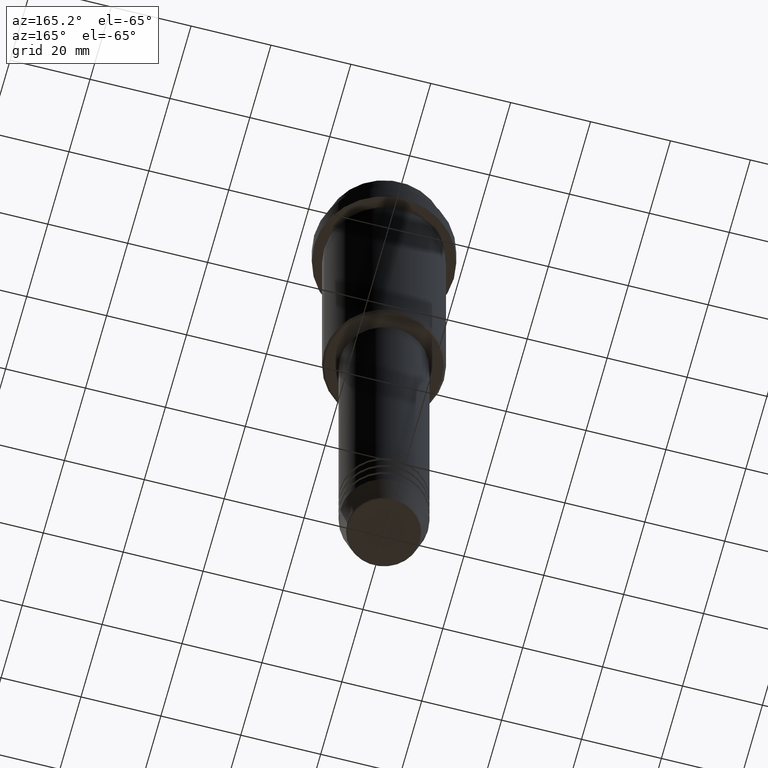
[diagram: clean part render]
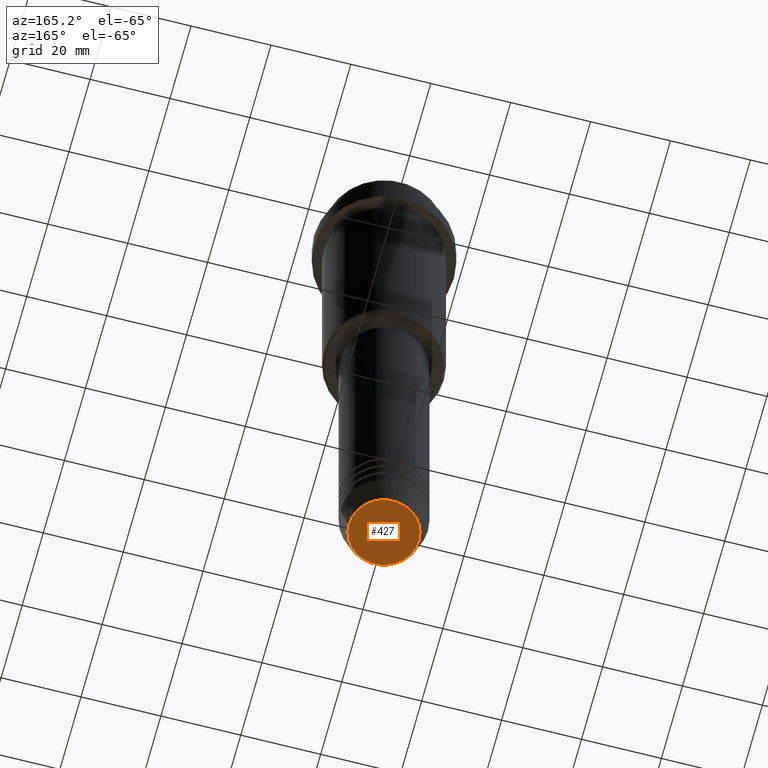
[diagram: same view with one face highlighted and labeled with its STEP entity id]
A machine part, auxiliary view. The second image highlights one B-rep face of the part: STEP entity #427.
In plain terms, the highlighted planar face has unit normal (0, -0, 1).
Its self-contained STEP definition (entity closure, byte-faithful):
#36 = EDGE_CURVE ( 'NONE', #102, #624, #466, .T. ) ;
#102 = VERTEX_POINT ( 'NONE', #724 ) ;
#139 = CARTESIAN_POINT ( 'NONE',  ( 0.000000000000000000, 0.000000000000000000, -170.0000000000000000 ) ) ;
#282 = CARTESIAN_POINT ( 'NONE',  ( -8.740692158992656502, 1.099999016768739653E-15, -170.0000000000000000 ) ) ;
#329 = DIRECTION ( 'NONE',  ( 0.000000000000000000, 0.000000000000000000, -1.000000000000000000 ) ) ;
#427 = ADVANCED_FACE ( 'NONE', ( #669 ), #799, .F. ) ;
#442 = AXIS2_PLACEMENT_3D ( 'NONE', #1320, #329, #757 ) ;
#466 = CIRCLE ( 'NONE', #1392, 8.740692158992656502 ) ;
#583 = DIRECTION ( 'NONE',  ( 0.000000000000000000, 0.000000000000000000, -1.000000000000000000 ) ) ;
#624 = VERTEX_POINT ( 'NONE', #282 ) ;
#669 = FACE_OUTER_BOUND ( 'NONE', #699, .T. ) ;
#699 = EDGE_LOOP ( 'NONE', ( #1183, #1385 ) ) ;
#724 = CARTESIAN_POINT ( 'NONE',  ( 8.740692158992656502, 0.000000000000000000, -170.0000000000000000 ) ) ;
#757 = DIRECTION ( 'NONE',  ( 1.000000000000000000, 0.000000000000000000, 0.000000000000000000 ) ) ;
#799 = PLANE ( 'NONE',  #863 ) ;
#834 = DIRECTION ( 'NONE',  ( 1.000000000000000000, 0.000000000000000000, 0.000000000000000000 ) ) ;
#863 = AXIS2_PLACEMENT_3D ( 'NONE', #1235, #1243, #1002 ) ;
#1002 = DIRECTION ( 'NONE',  ( 1.000000000000000000, 0.000000000000000000, 0.000000000000000000 ) ) ;
#1081 = EDGE_CURVE ( 'NONE', #624, #102, #1346, .T. ) ;
#1183 = ORIENTED_EDGE ( 'NONE', *, *, #36, .T. ) ;
#1235 = CARTESIAN_POINT ( 'NONE',  ( 0.000000000000000000, 0.000000000000000000, -170.0000000000000000 ) ) ;
#1243 = DIRECTION ( 'NONE',  ( 0.000000000000000000, -0.000000000000000000, 1.000000000000000000 ) ) ;
#1320 = CARTESIAN_POINT ( 'NONE',  ( 0.000000000000000000, 0.000000000000000000, -170.0000000000000000 ) ) ;
#1346 = CIRCLE ( 'NONE', #442, 8.740692158992656502 ) ;
#1385 = ORIENTED_EDGE ( 'NONE', *, *, #1081, .T. ) ;
#1392 = AXIS2_PLACEMENT_3D ( 'NONE', #139, #583, #834 ) ;